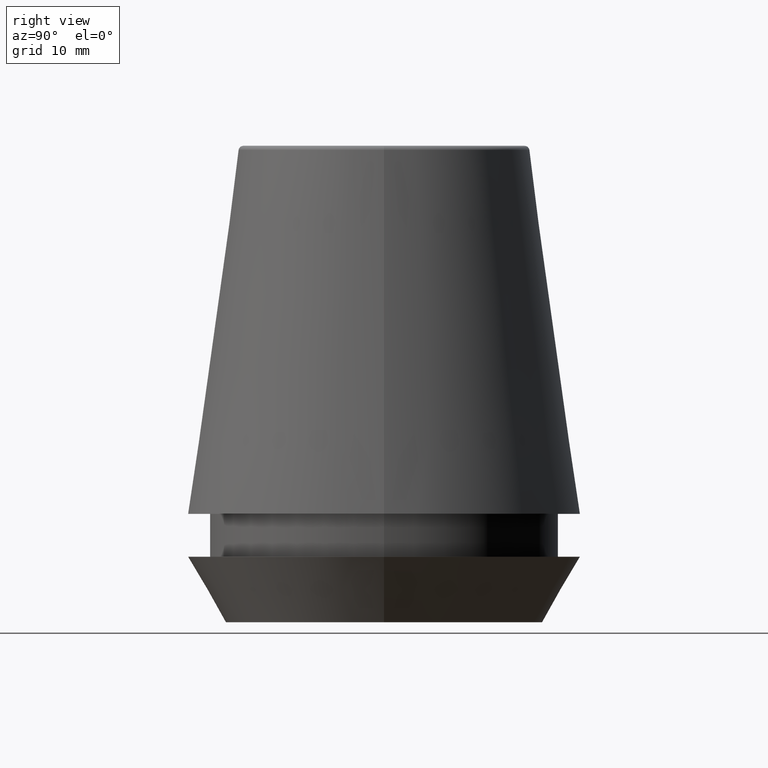
[diagram: clean part render]
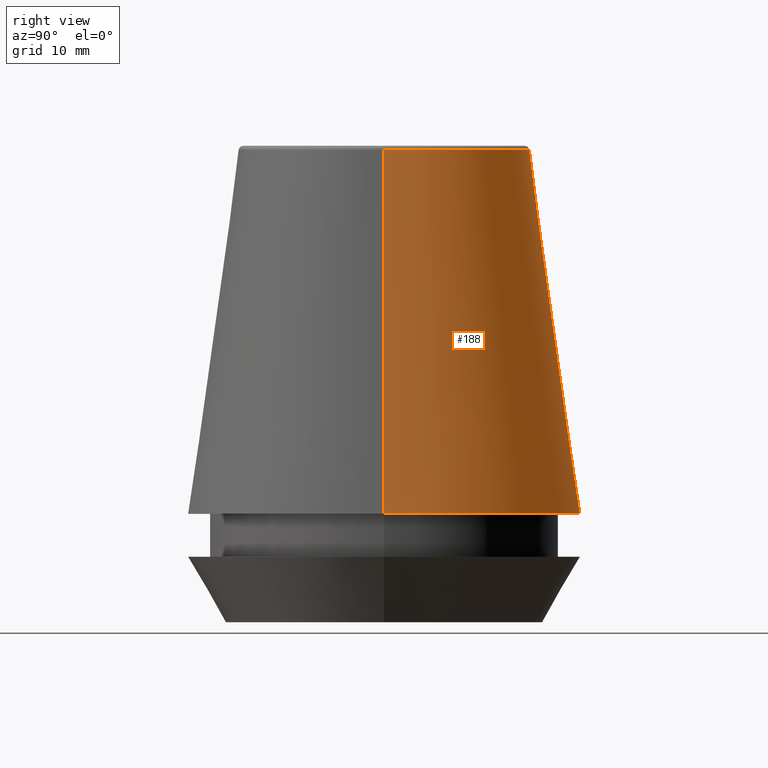
[diagram: same view with one face highlighted and labeled with its STEP entity id]
A machine part, right view. The second image highlights one B-rep face of the part: STEP entity #188.
In plain terms, the highlighted conical surface has half-angle 8 deg.
Its self-contained STEP definition (entity closure, byte-faithful):
#4 = LINE ( 'NONE', #327, #81 ) ;
#8 = DIRECTION ( 'NONE',  ( 0.0000000000000000000, 0.0000000000000000000, -1.000000000000000000 ) ) ;
#24 = ORIENTED_EDGE ( 'NONE', *, *, #308, .F. ) ;
#29 = VERTEX_POINT ( 'NONE', #343 ) ;
#39 = CARTESIAN_POINT ( 'NONE',  ( -16.50032537154048700, 0.0000000000000000000, 9.099999999999997900 ) ) ;
#51 = AXIS2_PLACEMENT_3D ( 'NONE', #279, #124, #305 ) ;
#53 = CONICAL_SURFACE ( 'NONE', #137, 16.50032537154048700, 0.1396263401595395900 ) ;
#57 = AXIS2_PLACEMENT_3D ( 'NONE', #145, #64, #245 ) ;
#64 = DIRECTION ( 'NONE',  ( -0.0000000000000000000, -0.0000000000000000000, 1.000000000000000000 ) ) ;
#65 = FACE_OUTER_BOUND ( 'NONE', #264, .T. ) ;
#81 = VECTOR ( 'NONE', #378, 1000.000000000000000 ) ;
#91 = CIRCLE ( 'NONE', #51, 12.20600611160694300 ) ;
#104 = CARTESIAN_POINT ( 'NONE',  ( 16.50032537154048700, 2.020707065114692300E-015, 9.099999999999997900 ) ) ;
#113 = VERTEX_POINT ( 'NONE', #104 ) ;
#124 = DIRECTION ( 'NONE',  ( -0.0000000000000000000, -0.0000000000000000000, 1.000000000000000000 ) ) ;
#137 = AXIS2_PLACEMENT_3D ( 'NONE', #278, #8, #304 ) ;
#145 = CARTESIAN_POINT ( 'NONE',  ( 0.0000000000000000000, 0.0000000000000000000, 9.099999999999997900 ) ) ;
#157 = CARTESIAN_POINT ( 'NONE',  ( 16.50032537154048700, 2.020707065114692300E-015, 9.099999999999997900 ) ) ;
#158 = VECTOR ( 'NONE', #339, 1000.000000000000000 ) ;
#172 = ORIENTED_EDGE ( 'NONE', *, *, #231, .F. ) ;
#188 = ADVANCED_FACE ( 'NONE', ( #65 ), #53, .T. ) ;
#205 = LINE ( 'NONE', #157, #158 ) ;
#215 = EDGE_CURVE ( 'NONE', #113, #280, #284, .T. ) ;
#221 = VERTEX_POINT ( 'NONE', #354 ) ;
#231 = EDGE_CURVE ( 'NONE', #29, #280, #4, .T. ) ;
#245 = DIRECTION ( 'NONE',  ( 1.000000000000000000, 0.0000000000000000000, 0.0000000000000000000 ) ) ;
#254 = EDGE_CURVE ( 'NONE', #221, #113, #205, .T. ) ;
#264 = EDGE_LOOP ( 'NONE', ( #24, #272, #283, #172 ) ) ;
#272 = ORIENTED_EDGE ( 'NONE', *, *, #254, .T. ) ;
#278 = CARTESIAN_POINT ( 'NONE',  ( 0.0000000000000000000, 0.0000000000000000000, 9.099999999999997900 ) ) ;
#279 = CARTESIAN_POINT ( 'NONE',  ( 0.0000000000000000000, 0.0000000000000000000, 39.65566924038402900 ) ) ;
#280 = VERTEX_POINT ( 'NONE', #39 ) ;
#283 = ORIENTED_EDGE ( 'NONE', *, *, #215, .T. ) ;
#284 = CIRCLE ( 'NONE', #57, 16.50032537154048700 ) ;
#304 = DIRECTION ( 'NONE',  ( -1.000000000000000000, 0.0000000000000000000, 0.0000000000000000000 ) ) ;
#305 = DIRECTION ( 'NONE',  ( 1.000000000000000000, 0.0000000000000000000, 0.0000000000000000000 ) ) ;
#308 = EDGE_CURVE ( 'NONE', #221, #29, #91, .T. ) ;
#327 = CARTESIAN_POINT ( 'NONE',  ( -16.50032537154048700, 0.0000000000000000000, 9.099999999999997900 ) ) ;
#339 = DIRECTION ( 'NONE',  ( 0.1391731009600586900, 1.704378926181473100E-017, -0.9902680687415712500 ) ) ;
#343 = CARTESIAN_POINT ( 'NONE',  ( -12.20600611160694300, 0.0000000000000000000, 39.65566924038402900 ) ) ;
#354 = CARTESIAN_POINT ( 'NONE',  ( 12.20600611160694300, 1.757755848304969800E-015, 39.65566924038402900 ) ) ;
#378 = DIRECTION ( 'NONE',  ( -0.1391731009600586900, 0.0000000000000000000, -0.9902680687415712500 ) ) ;